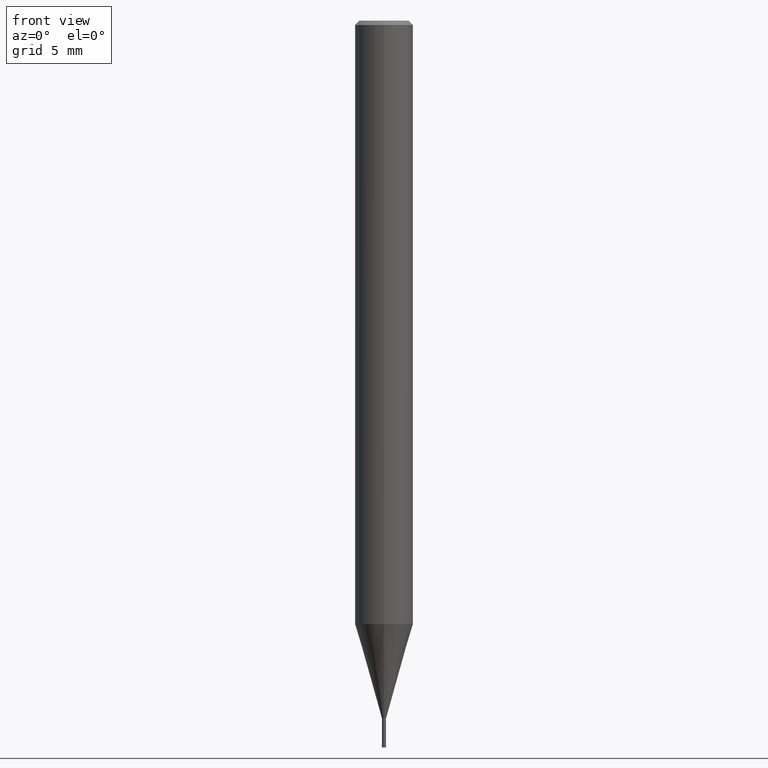
[diagram: clean part render]
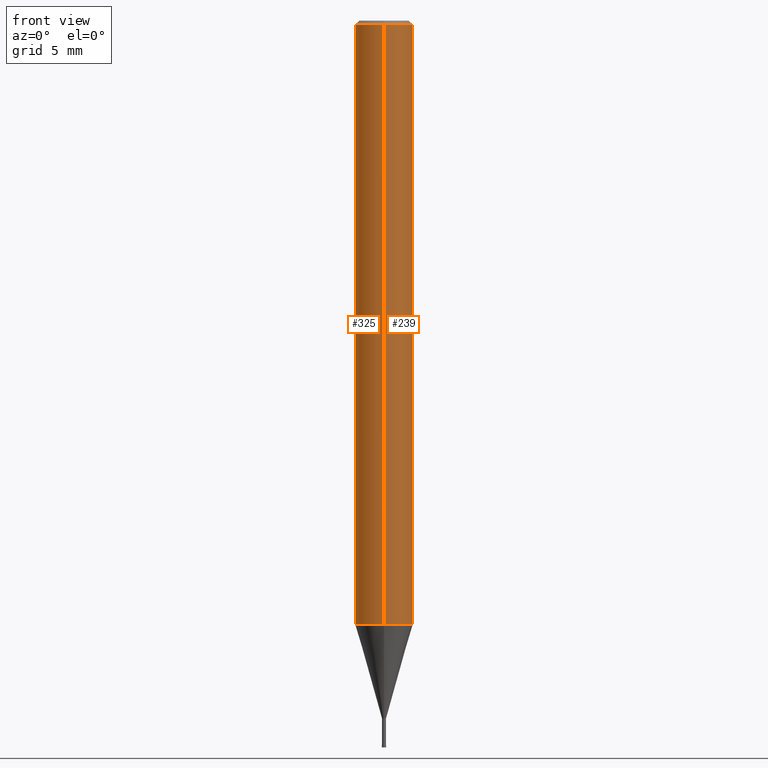
[diagram: same view with one multi-face feature highlighted, each face labeled with its STEP entity id]
A machine part, front view. The highlighted faces form ONE feature: a constant-radius fillet chain: 2 tangent blend faces with common blend radius 2 mm. The faces share edges in the B-rep.
Their STEP definitions:
[1] entity #239 (Cylinder):
#151=VERTEX_POINT('',#388);
#161=VERTEX_POINT('',#399);
#183=EDGE_CURVE('',#161,#349,#422,.T.);
#201=EDGE_CURVE('',#161,#151,#444,.T.);
#239=ADVANCED_FACE('',(#491),#492,.T.);
#257=EDGE_CURVE('',#287,#349,#512,.T.);
#287=VERTEX_POINT('',#545);
#349=VERTEX_POINT('',#614);
#351=EDGE_CURVE('',#151,#287,#616,.T.);
#388=CARTESIAN_POINT('',(0.0,2.0,-41.503));
#399=CARTESIAN_POINT('',(0.0,2.0,-0.289999999999999));
#422=CIRCLE('',#703,2.0);
#444=LINE('',#730,#731);
#491=FACE_OUTER_BOUND('',#784,.T.);
#492=CYLINDRICAL_SURFACE('',#785,2.0);
#512=LINE('',#813,#814);
#545=CARTESIAN_POINT('',(2.44921270764475E-016,-2.0,-41.503));
#614=CARTESIAN_POINT('',(2.44921270764475E-016,-2.0,-0.289999999999999));
#616=CIRCLE('',#938,2.0);
#703=AXIS2_PLACEMENT_3D('',#993,#994,#995);
#730=CARTESIAN_POINT('',(-2.44921270764475E-016,2.0,-20.8965));
#731=VECTOR('',#1040,1.0);
#784=EDGE_LOOP('',(#1112,#1113,#1114,#1115));
#785=AXIS2_PLACEMENT_3D('',#1116,#1117,#1118);
#813=CARTESIAN_POINT('',(2.44921270764475E-016,-2.0,-20.8965));
#814=VECTOR('',#1138,1.0);
#938=AXIS2_PLACEMENT_3D('',#1259,#1260,#1261);
#993=CARTESIAN_POINT('',(0.0,0.0,-0.289999999999999));
#994=DIRECTION('',(0.0,0.0,-1.0));
#995=DIRECTION('',(0.0,1.0,0.0));
#1040=DIRECTION('',(0.0,0.0,-1.0));
#1112=ORIENTED_EDGE('',*,*,#201,.F.);
#1113=ORIENTED_EDGE('',*,*,#183,.T.);
#1114=ORIENTED_EDGE('',*,*,#257,.F.);
#1115=ORIENTED_EDGE('',*,*,#351,.F.);
#1116=CARTESIAN_POINT('',(0.0,0.0,-20.8965));
#1117=DIRECTION('',(-0.0,-0.0,1.0));
#1118=DIRECTION('',(0.0,1.0,0.0));
#1138=DIRECTION('',(-0.0,-0.0,1.0));
#1259=CARTESIAN_POINT('',(0.0,0.0,-41.503));
#1260=DIRECTION('',(0.0,0.0,-1.0));
#1261=DIRECTION('',(0.0,1.0,0.0));
[2] entity #325 (Cylinder):
#151=VERTEX_POINT('',#388);
#161=VERTEX_POINT('',#399);
#185=EDGE_CURVE('',#349,#161,#424,.T.);
#201=EDGE_CURVE('',#161,#151,#444,.T.);
#257=EDGE_CURVE('',#287,#349,#512,.T.);
#287=VERTEX_POINT('',#545);
#325=ADVANCED_FACE('',(#586),#587,.T.);
#349=VERTEX_POINT('',#614);
#355=EDGE_CURVE('',#287,#151,#620,.T.);
#388=CARTESIAN_POINT('',(0.0,2.0,-41.503));
#399=CARTESIAN_POINT('',(0.0,2.0,-0.289999999999999));
#424=CIRCLE('',#706,2.0);
#444=LINE('',#730,#731);
#512=LINE('',#813,#814);
#545=CARTESIAN_POINT('',(2.44921270764475E-016,-2.0,-41.503));
#586=FACE_OUTER_BOUND('',#905,.T.);
#587=CYLINDRICAL_SURFACE('',#906,2.0);
#614=CARTESIAN_POINT('',(2.44921270764475E-016,-2.0,-0.289999999999999));
#620=CIRCLE('',#943,2.0);
#706=AXIS2_PLACEMENT_3D('',#996,#997,#998);
#730=CARTESIAN_POINT('',(-2.44921270764475E-016,2.0,-20.8965));
#731=VECTOR('',#1040,1.0);
#813=CARTESIAN_POINT('',(2.44921270764475E-016,-2.0,-20.8965));
#814=VECTOR('',#1138,1.0);
#905=EDGE_LOOP('',(#1219,#1220,#1221,#1222));
#906=AXIS2_PLACEMENT_3D('',#1223,#1224,#1225);
#943=AXIS2_PLACEMENT_3D('',#1262,#1263,#1264);
#996=CARTESIAN_POINT('',(0.0,0.0,-0.289999999999999));
#997=DIRECTION('',(0.0,0.0,-1.0));
#998=DIRECTION('',(0.0,1.0,0.0));
#1040=DIRECTION('',(0.0,0.0,-1.0));
#1138=DIRECTION('',(-0.0,-0.0,1.0));
#1219=ORIENTED_EDGE('',*,*,#201,.T.);
#1220=ORIENTED_EDGE('',*,*,#355,.F.);
#1221=ORIENTED_EDGE('',*,*,#257,.T.);
#1222=ORIENTED_EDGE('',*,*,#185,.T.);
#1223=CARTESIAN_POINT('',(0.0,0.0,-20.8965));
#1224=DIRECTION('',(-0.0,-0.0,1.0));
#1225=DIRECTION('',(0.0,1.0,0.0));
#1262=CARTESIAN_POINT('',(0.0,0.0,-41.503));
#1263=DIRECTION('',(0.0,0.0,-1.0));
#1264=DIRECTION('',(0.0,1.0,0.0));